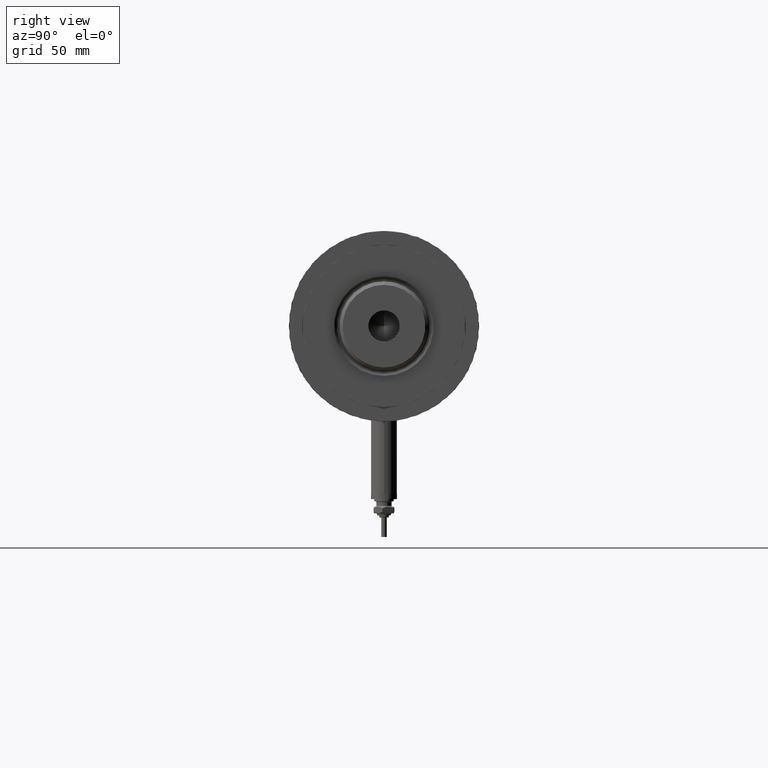
[diagram: clean part render]
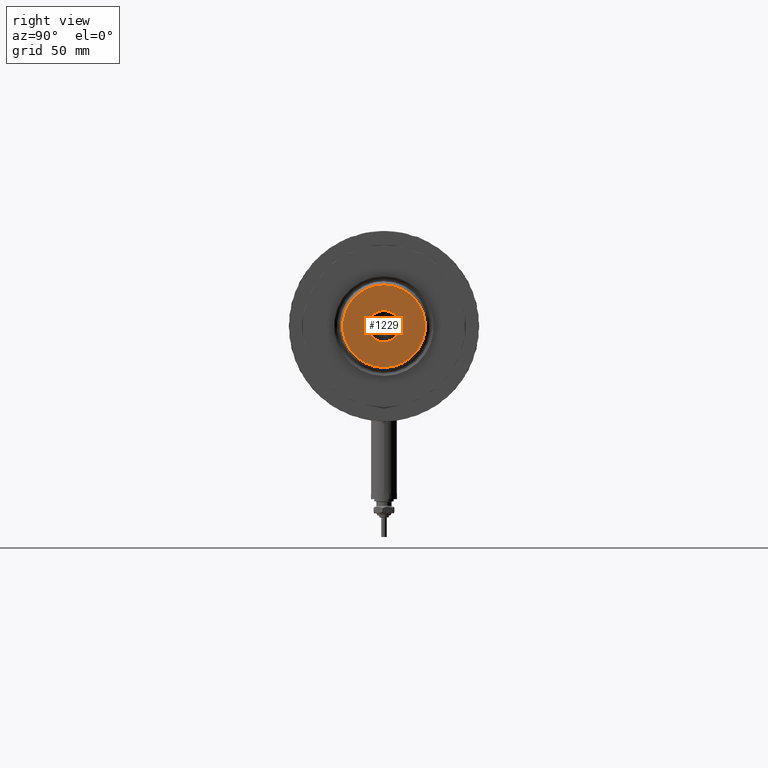
[diagram: same view with one face highlighted and labeled with its STEP entity id]
A machine part, right view. The second image highlights one B-rep face of the part: STEP entity #1229.
In plain terms, the highlighted planar face has unit normal (1, 0, -0).
Its self-contained STEP definition (entity closure, byte-faithful):
#9 = CIRCLE ( 'NONE', #4368, 7.249999999999999112 ) ;
#427 = CARTESIAN_POINT ( 'NONE',  ( 7.249999999999999112, 0.000000000000000000, 253.3000000000000114 ) ) ;
#448 = VERTEX_POINT ( 'NONE', #4135 ) ;
#751 = DIRECTION ( 'NONE',  ( 1.000000000000000000, 0.000000000000000000, 0.000000000000000000 ) ) ;
#766 = DIRECTION ( 'NONE',  ( 1.000000000000000000, 0.000000000000000000, -0.000000000000000000 ) ) ;
#872 = VERTEX_POINT ( 'NONE', #5485 ) ;
#1025 = ORIENTED_EDGE ( 'NONE', *, *, #5849, .T. ) ;
#1229 = ADVANCED_FACE ( 'NONE', ( #5311, #1674 ), #3525, .T. ) ;
#1631 = AXIS2_PLACEMENT_3D ( 'NONE', #3494, #3992, #766 ) ;
#1653 = EDGE_LOOP ( 'NONE', ( #1025, #2496 ) ) ;
#1660 = CIRCLE ( 'NONE', #2440, 19.10000000000006182 ) ;
#1674 = FACE_BOUND ( 'NONE', #2100, .T. ) ;
#1827 = AXIS2_PLACEMENT_3D ( 'NONE', #3057, #3908, #751 ) ;
#2100 = EDGE_LOOP ( 'NONE', ( #4375, #2333 ) ) ;
#2123 = CARTESIAN_POINT ( 'NONE',  ( 0.000000000000000000, 0.000000000000000000, 253.3000000000000114 ) ) ;
#2129 = CARTESIAN_POINT ( 'NONE',  ( 0.000000000000000000, 0.000000000000000000, 253.3000000000000114 ) ) ;
#2196 = DIRECTION ( 'NONE',  ( 1.000000000000000000, 0.000000000000000000, 0.000000000000000000 ) ) ;
#2333 = ORIENTED_EDGE ( 'NONE', *, *, #5471, .F. ) ;
#2380 = EDGE_CURVE ( 'NONE', #872, #448, #3672, .T. ) ;
#2385 = DIRECTION ( 'NONE',  ( 1.000000000000000000, 0.000000000000000000, 0.000000000000000000 ) ) ;
#2440 = AXIS2_PLACEMENT_3D ( 'NONE', #2123, #4471, #2385 ) ;
#2496 = ORIENTED_EDGE ( 'NONE', *, *, #2380, .T. ) ;
#2506 = VERTEX_POINT ( 'NONE', #427 ) ;
#3057 = CARTESIAN_POINT ( 'NONE',  ( 0.000000000000000000, 0.000000000000000000, 253.3000000000000114 ) ) ;
#3117 = AXIS2_PLACEMENT_3D ( 'NONE', #2129, #3461, #3568 ) ;
#3361 = CARTESIAN_POINT ( 'NONE',  ( -7.249999999999999112, 8.878689293818310074E-16, 253.3000000000000114 ) ) ;
#3461 = DIRECTION ( 'NONE',  ( -0.000000000000000000, -0.000000000000000000, 1.000000000000000000 ) ) ;
#3465 = EDGE_CURVE ( 'NONE', #2506, #4885, #4938, .T. ) ;
#3494 = CARTESIAN_POINT ( 'NONE',  ( 0.000000000000000000, 0.000000000000000000, 253.3000000000000114 ) ) ;
#3525 = PLANE ( 'NONE',  #1631 ) ;
#3568 = DIRECTION ( 'NONE',  ( 1.000000000000000000, 0.000000000000000000, 0.000000000000000000 ) ) ;
#3672 = CIRCLE ( 'NONE', #1827, 19.10000000000006182 ) ;
#3908 = DIRECTION ( 'NONE',  ( 0.000000000000000000, 0.000000000000000000, 1.000000000000000000 ) ) ;
#3992 = DIRECTION ( 'NONE',  ( 0.000000000000000000, 0.000000000000000000, 1.000000000000000000 ) ) ;
#4135 = CARTESIAN_POINT ( 'NONE',  ( -19.10000000000006182, 0.000000000000000000, 253.3000000000000114 ) ) ;
#4368 = AXIS2_PLACEMENT_3D ( 'NONE', #4513, #4965, #2196 ) ;
#4375 = ORIENTED_EDGE ( 'NONE', *, *, #3465, .F. ) ;
#4471 = DIRECTION ( 'NONE',  ( 0.000000000000000000, 0.000000000000000000, 1.000000000000000000 ) ) ;
#4513 = CARTESIAN_POINT ( 'NONE',  ( 0.000000000000000000, 0.000000000000000000, 253.3000000000000114 ) ) ;
#4885 = VERTEX_POINT ( 'NONE', #3361 ) ;
#4938 = CIRCLE ( 'NONE', #3117, 7.249999999999999112 ) ;
#4965 = DIRECTION ( 'NONE',  ( -0.000000000000000000, -0.000000000000000000, 1.000000000000000000 ) ) ;
#5311 = FACE_OUTER_BOUND ( 'NONE', #1653, .T. ) ;
#5471 = EDGE_CURVE ( 'NONE', #4885, #2506, #9, .T. ) ;
#5485 = CARTESIAN_POINT ( 'NONE',  ( 19.10000000000006182, 2.424800662311762954E-15, 253.3000000000000114 ) ) ;
#5849 = EDGE_CURVE ( 'NONE', #448, #872, #1660, .T. ) ;